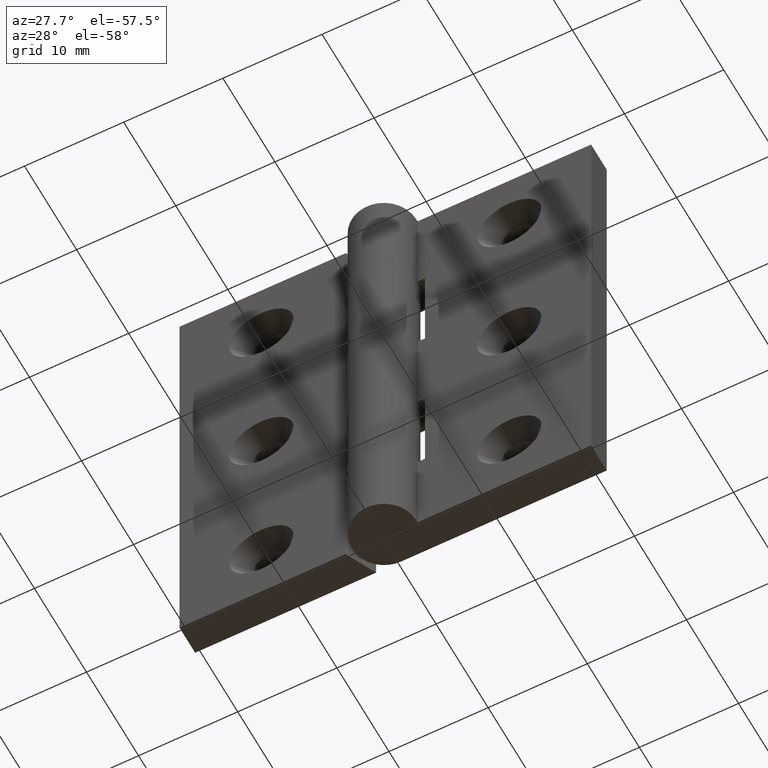
[diagram: clean part render]
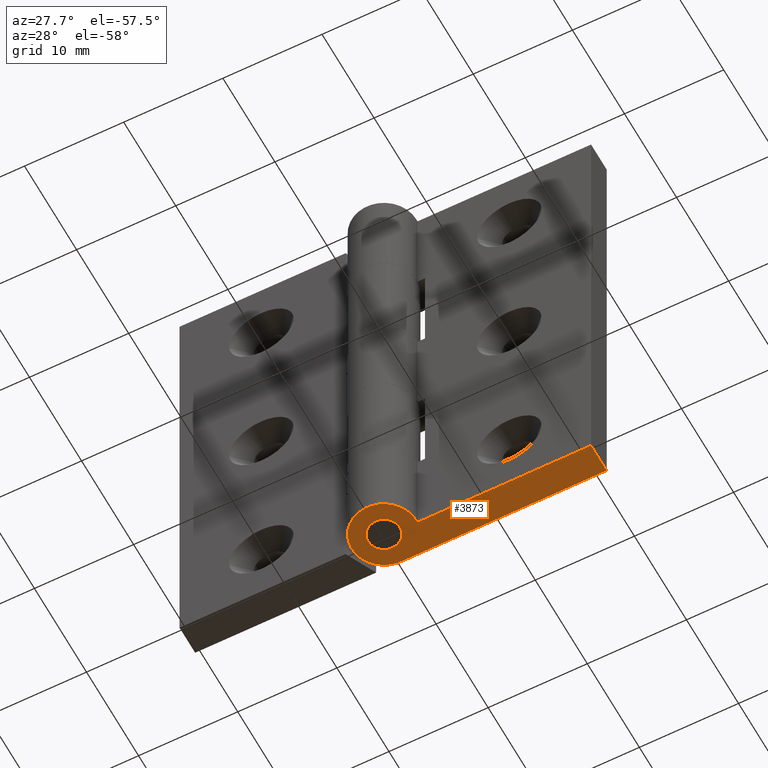
[diagram: same view with one face highlighted and labeled with its STEP entity id]
A machine part, auxiliary view. The second image highlights one B-rep face of the part: STEP entity #3873.
In plain terms, the highlighted face is a freeform B-spline surface patch.
Its self-contained STEP definition (entity closure, byte-faithful):
#3208=CARTESIAN_POINT('',(-0.125534553363529,1.595067733957345,-3.608225E-016));
#3209=VERTEX_POINT('',#3208);
#3215=CARTESIAN_POINT('',(1.600000000000000,0.0,0.0));
#3216=VERTEX_POINT('',#3215);
#3217=CARTESIAN_POINT('',(-0.125534553363529,1.595067733957345,0.0));
#3218=CARTESIAN_POINT('',(-0.062864171312222,1.600000000000000,0.0));
#3219=CARTESIAN_POINT('',(0.0,1.600000000000000,0.0));
#3220=CARTESIAN_POINT('',(1.600000000000000,1.600000000000000,0.0));
#3221=CARTESIAN_POINT('',(1.600000000000000,0.0,0.0));
#3229=(BOUNDED_CURVE()B_SPLINE_CURVE(2,(#3217,#3218,#3219,#3220,#3221),.UNSPECIFIED.,.F.,.U.)B_SPLINE_CURVE_WITH_KNOTS((3,2,3),(0.736331300611383,0.750000000000000,1.0),.UNSPECIFIED.)CURVE()GEOMETRIC_REPRESENTATION_ITEM()RATIONAL_B_SPLINE_CURVE((0.969723356127188,0.983986122556297,1.0,0.707106781186548,1.0))REPRESENTATION_ITEM(''));
#3230=EDGE_CURVE('',#3209,#3216,#3229,.T.);
#3232=CARTESIAN_POINT('',(0.125534553363529,-1.595067733957345,-3.608225E-016));
#3233=VERTEX_POINT('',#3232);
#3234=CARTESIAN_POINT('',(1.600000000000000,0.0,0.0));
#3235=CARTESIAN_POINT('',(1.599999999999999,-1.479024786468059,0.0));
#3236=CARTESIAN_POINT('',(0.125534553363529,-1.595067733957345,0.0));
#3244=(BOUNDED_CURVE()B_SPLINE_CURVE(2,(#3234,#3235,#3236),.UNSPECIFIED.,.F.,.U.)B_SPLINE_CURVE_WITH_KNOTS((3,3),(0.0,0.236331300611382),.UNSPECIFIED.)CURVE()GEOMETRIC_REPRESENTATION_ITEM()RATIONAL_B_SPLINE_CURVE((1.0,0.723120658630250,0.969723356127188))REPRESENTATION_ITEM(''));
#3245=EDGE_CURVE('',#3216,#3233,#3244,.T.);
#3291=CARTESIAN_POINT('',(-1.600000000000000,0.0,0.0));
#3292=VERTEX_POINT('',#3291);
#3293=CARTESIAN_POINT('',(0.125534553363529,-1.595067733957345,0.0));
#3294=CARTESIAN_POINT('',(0.062864171312222,-1.600000000000000,0.0));
#3295=CARTESIAN_POINT('',(0.0,-1.600000000000000,0.0));
#3296=CARTESIAN_POINT('',(-1.600000000000000,-1.600000000000000,0.0));
#3297=CARTESIAN_POINT('',(-1.600000000000000,0.0,0.0));
#3305=(BOUNDED_CURVE()B_SPLINE_CURVE(2,(#3293,#3294,#3295,#3296,#3297),.UNSPECIFIED.,.F.,.U.)B_SPLINE_CURVE_WITH_KNOTS((3,2,3),(0.236331300611382,0.250000000000000,0.500000000000000),.UNSPECIFIED.)CURVE()GEOMETRIC_REPRESENTATION_ITEM()RATIONAL_B_SPLINE_CURVE((0.969723356127188,0.983986122556297,1.0,0.707106781186548,1.0))REPRESENTATION_ITEM(''));
#3306=EDGE_CURVE('',#3233,#3292,#3305,.T.);
#3308=CARTESIAN_POINT('',(-1.600000000000000,0.0,0.0));
#3309=CARTESIAN_POINT('',(-1.600000000000000,1.479024786468059,0.0));
#3310=CARTESIAN_POINT('',(-0.125534553363529,1.595067733957345,0.0));
#3318=(BOUNDED_CURVE()B_SPLINE_CURVE(2,(#3308,#3309,#3310),.UNSPECIFIED.,.F.,.U.)B_SPLINE_CURVE_WITH_KNOTS((3,3),(0.500000000000000,0.736331300611383),.UNSPECIFIED.)CURVE()GEOMETRIC_REPRESENTATION_ITEM()RATIONAL_B_SPLINE_CURVE((1.0,0.723120658630250,0.969723356127188))REPRESENTATION_ITEM(''));
#3319=EDGE_CURVE('',#3292,#3209,#3318,.T.);
#3716=CARTESIAN_POINT('',(20.750000000000000,0.250002000000000,0.0));
#3717=VERTEX_POINT('',#3716);
#3723=CARTESIAN_POINT('',(20.750000000000000,3.250002000000000,0.0));
#3724=VERTEX_POINT('',#3723);
#3725=CARTESIAN_POINT('',(20.750000000000000,0.250002000000000,0.0));
#3726=CARTESIAN_POINT('',(20.750000000000000,3.250002000000000,0.0));
#3727=QUASI_UNIFORM_CURVE('',1,(#3725,#3726),.UNSPECIFIED.,.F.,.U.);
#3728=EDGE_CURVE('',#3717,#3724,#3727,.T.);
#3806=CARTESIAN_POINT('',(-4.448802174046376,-3.574677190680246,0.0));
#3807=CARTESIAN_POINT('',(21.948800702603769,-3.574677190680246,0.0));
#3808=CARTESIAN_POINT('',(-4.448802174046376,3.574677361460726,0.0));
#3809=CARTESIAN_POINT('',(21.948800702603769,3.574677361460727,0.0));
#3810=B_SPLINE_SURFACE_WITH_KNOTS('',1,1,((#3806,#3808),(#3807,#3809)),.UNSPECIFIED.,.F.,.F.,.U.,(2,2),(2,2),(0.0,26.397602876650151),(0.0,7.149354552140973),.UNSPECIFIED.);
#3811=ORIENTED_EDGE('',*,*,#3728,.F.);
#3812=CARTESIAN_POINT('',(3.250001999999965,0.250002000000000,0.0));
#3813=VERTEX_POINT('',#3812);
#3814=CARTESIAN_POINT('',(3.250001999999965,0.250002000000000,0.0));
#3815=CARTESIAN_POINT('',(20.750000000000000,0.250002000000000,0.0));
#3816=QUASI_UNIFORM_CURVE('',1,(#3814,#3815),.UNSPECIFIED.,.F.,.U.);
#3817=EDGE_CURVE('',#3813,#3717,#3816,.T.);
#3818=ORIENTED_EDGE('',*,*,#3817,.F.);
#3819=CARTESIAN_POINT('',(3.250002000000000,3.694824E-013,0.0));
#3820=VERTEX_POINT('',#3819);
#3821=CARTESIAN_POINT('',(3.250002000000000,3.694824E-013,0.0));
#3822=CARTESIAN_POINT('',(3.250001999999965,0.250002000000000,0.0));
#3823=QUASI_UNIFORM_CURVE('',1,(#3821,#3822),.UNSPECIFIED.,.F.,.U.);
#3824=EDGE_CURVE('',#3820,#3813,#3823,.T.);
#3825=ORIENTED_EDGE('',*,*,#3824,.F.);
#3826=CARTESIAN_POINT('',(0.0,3.250002000000000,0.0));
#3827=VERTEX_POINT('',#3826);
#3828=CARTESIAN_POINT('',(3.250002000000000,3.694824E-013,0.0));
#3829=CARTESIAN_POINT('',(3.250052453527448,-0.249273304111516,0.0));
#3830=CARTESIAN_POINT('',(3.206191049712372,-0.628133285723981,0.0));
#3831=CARTESIAN_POINT('',(3.037709899634744,-1.192879904862439,0.0));
#3832=CARTESIAN_POINT('',(2.817156899026907,-1.653709336850631,0.0));
#3833=CARTESIAN_POINT('',(2.444600942170767,-2.174239644284317,0.0));
#3834=CARTESIAN_POINT('',(1.982398033151720,-2.606255530916899,0.0));
#3835=CARTESIAN_POINT('',(1.467043500499130,-2.915082392045474,0.0));
#3836=CARTESIAN_POINT('',(0.985212266818731,-3.109489645840810,0.0));
#3837=CARTESIAN_POINT('',(0.547479446945482,-3.214855209610876,0.0));
#3838=CARTESIAN_POINT('',(0.040283628963484,-3.262459491754382,0.0));
#3839=CARTESIAN_POINT('',(-0.449506478458895,-3.233873857345473,0.0));
#3840=CARTESIAN_POINT('',(-0.956398203401960,-3.118402015582308,0.0));
#3841=CARTESIAN_POINT('',(-1.468844611067860,-2.918954168355166,0.0));
#3842=CARTESIAN_POINT('',(-1.981520529096312,-2.604144400678558,0.0));
#3843=CARTESIAN_POINT('',(-2.515051025708282,-2.103982999836488,0.0));
#3844=CARTESIAN_POINT('',(-2.910977671023400,-1.509513412584827,0.0));
#3845=CARTESIAN_POINT('',(-3.138695730440936,-0.899460603644052,0.0));
#3846=CARTESIAN_POINT('',(-3.239630890165035,-0.379467622800494,0.0));
#3847=CARTESIAN_POINT('',(-3.262778724593348,0.140073677477806,0.0));
#3848=CARTESIAN_POINT('',(-3.197444912524977,0.656623104519365,0.0));
#3849=CARTESIAN_POINT('',(-3.016538716788710,1.270194689622975,0.0));
#3850=CARTESIAN_POINT('',(-2.699717760394427,1.865100538585107,0.0));
#3851=CARTESIAN_POINT('',(-2.225629295566975,2.396221270068431,0.0));
#3852=CARTESIAN_POINT('',(-1.779013046418453,2.734912158711754,0.0));
#3853=CARTESIAN_POINT('',(-1.366213577321552,2.958809418484887,0.0));
#3854=CARTESIAN_POINT('',(-0.797577570918428,3.178208373761369,0.0));
#3855=CARTESIAN_POINT('',(-0.329057417290294,3.250174234168317,0.0));
#3856=CARTESIAN_POINT('',(0.0,3.250002000000000,0.0));
#3857=B_SPLINE_CURVE_WITH_KNOTS('',3,(#3828,#3829,#3830,#3831,#3832,#3833,#3834,#3835,#3836,#3837,#3838,#3839,#3840,#3841,#3842,#3843,#3844,#3845,#3846,#3847,#3848,#3849,#3850,#3851,#3852,#3853,#3854,#3855,#3856),.UNSPECIFIED.,.F.,.U.,(4,1,1,1,1,1,1,1,1,1,1,1,1,1,1,1,1,1,1,1,1,1,1,1,1,1,4),(0.000000224491972,0.747806681975524,1.136662804612524,1.764852312477837,2.273366161762072,3.051110149320170,3.649367111519329,4.068146916627763,4.606595219443829,4.995460984166176,5.593682435882810,6.072264374721135,6.550874801063287,7.238884911549853,7.867058348940259,8.734542207328458,9.362716568252225,9.811412290901444,10.319869536564511,10.918124932897349,11.366830310109711,12.234306510154671,12.922309419102330,13.490662619441220,13.909448318148939,14.328229406511101,15.315327666879829),.UNSPECIFIED.);
#3858=EDGE_CURVE('',#3820,#3827,#3857,.T.);
#3859=ORIENTED_EDGE('',*,*,#3858,.T.);
#3860=CARTESIAN_POINT('',(20.750000000000000,3.250002000000000,0.0));
#3861=CARTESIAN_POINT('',(0.0,3.250002000000000,0.0));
#3862=QUASI_UNIFORM_CURVE('',1,(#3860,#3861),.UNSPECIFIED.,.F.,.U.);
#3863=EDGE_CURVE('',#3724,#3827,#3862,.T.);
#3864=ORIENTED_EDGE('',*,*,#3863,.F.);
#3865=EDGE_LOOP('',(#3811,#3818,#3825,#3859,#3864));
#3866=FACE_OUTER_BOUND('',#3865,.T.);
#3867=ORIENTED_EDGE('',*,*,#3319,.F.);
#3868=ORIENTED_EDGE('',*,*,#3306,.F.);
#3869=ORIENTED_EDGE('',*,*,#3245,.F.);
#3870=ORIENTED_EDGE('',*,*,#3230,.F.);
#3871=EDGE_LOOP('',(#3867,#3868,#3869,#3870));
#3872=FACE_BOUND('',#3871,.T.);
#3873=ADVANCED_FACE('',(#3866,#3872),#3810,.F.);